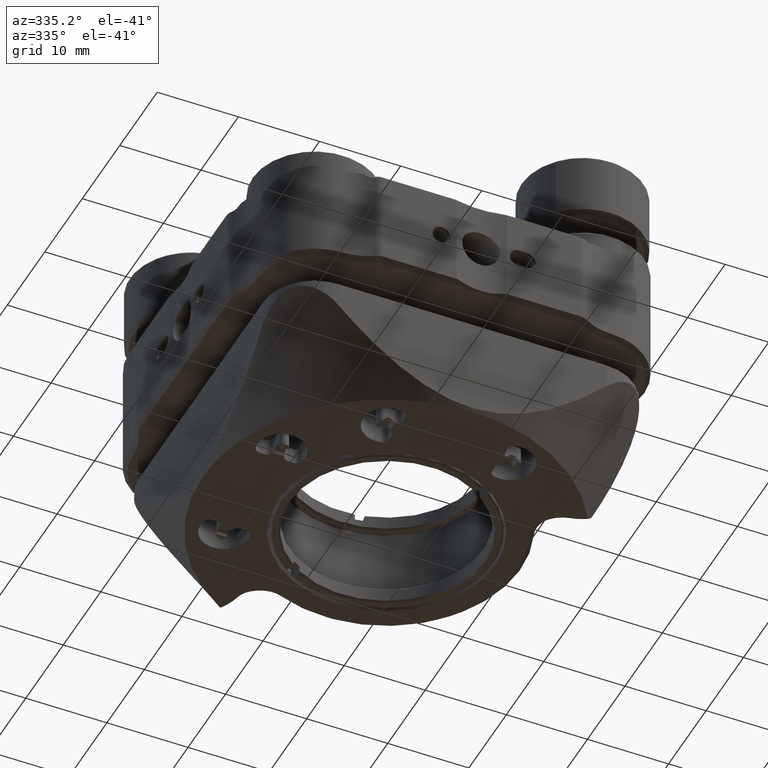
[diagram: clean part render]
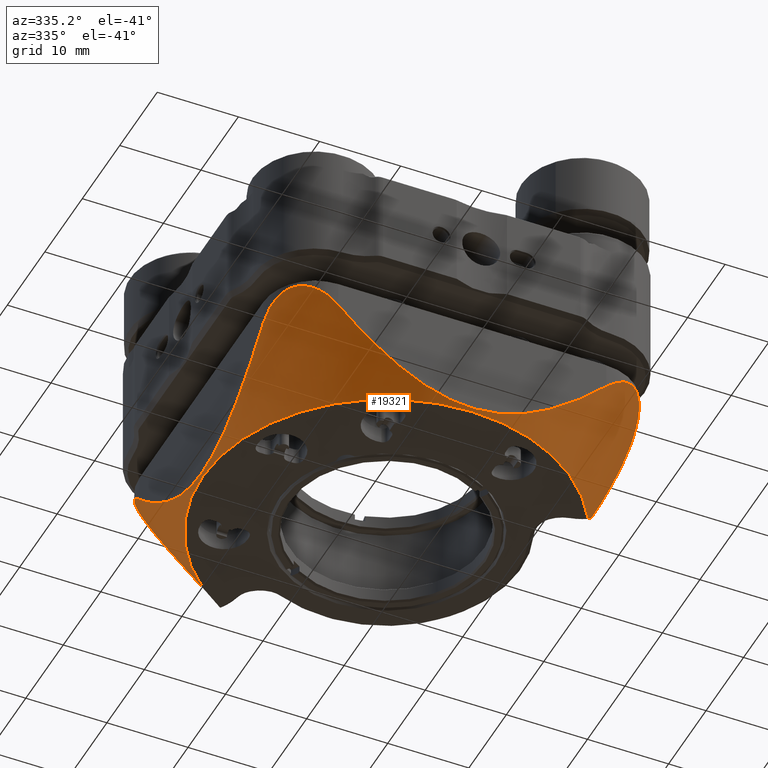
[diagram: same view with one face highlighted and labeled with its STEP entity id]
A machine part, auxiliary view. The second image highlights one B-rep face of the part: STEP entity #19321.
In plain terms, the highlighted conical surface has half-angle 30 deg.
Its self-contained STEP definition (entity closure, byte-faithful):
#87 = CARTESIAN_POINT ( 'NONE',  ( -22.85999999999995680, 16.84310386567812046, -15.60025666984973114 ) ) ;
#88 = CARTESIAN_POINT ( 'NONE',  ( 10.46453350911293612, -22.85999999999915744, -21.24502546422377591 ) ) ;
#252 = CARTESIAN_POINT ( 'NONE',  ( -22.86000000000013443, -0.4042374301810902626, -25.18486547961951771 ) ) ;
#270 = CARTESIAN_POINT ( 'NONE',  ( 22.67564328712232324, -18.07421779617813229, -14.55737153306060527 ) ) ;
#427 = CARTESIAN_POINT ( 'NONE',  ( -21.63071384112300422, -20.27261961741195506, -13.43322160502291496 ) ) ;
#573 = CARTESIAN_POINT ( 'NONE',  ( -22.86000000000002785, 9.796033959402018709, -21.71647102444041266 ) ) ;
#603 = VERTEX_POINT ( 'NONE', #5257 ) ;
#604 = ORIENTED_EDGE ( 'NONE', *, *, #14634, .F. ) ;
#685 = EDGE_CURVE ( 'NONE', #1149, #4710, #5581, .T. ) ;
#752 = CARTESIAN_POINT ( 'NONE',  ( -16.51000000000050960, -22.85999999999899757, -15.93805709571003959 ) ) ;
#785 = CARTESIAN_POINT ( 'NONE',  ( -22.86000000000025167, -11.73295521827860810, -20.28541116882302120 ) ) ;
#971 = CARTESIAN_POINT ( 'NONE',  ( -11.78697481907095757, 20.78177269148175554, -23.39841653795605581 ) ) ;
#1070 = CARTESIAN_POINT ( 'NONE',  ( 17.18774516505375161, -22.83418087851355338, -15.28045915768623253 ) ) ;
#1074 = CARTESIAN_POINT ( 'NONE',  ( -18.07782114073277668, 22.67471536333649240, -14.55473568109307436 ) ) ;
#1149 = VERTEX_POINT ( 'NONE', #10297 ) ;
#1183 = CARTESIAN_POINT ( 'NONE',  ( 22.26769329978891321, -13.78286640906990890, -19.42231144048091096 ) ) ;
#1184 = CARTESIAN_POINT ( 'NONE',  ( -22.33395331907298242, 19.04968600463999451, -13.93692290951005042 ) ) ;
#1340 = ORIENTED_EDGE ( 'NONE', *, *, #3432, .F. ) ;
#1396 = CARTESIAN_POINT ( 'NONE',  ( -16.01048892561568238, 22.84784313269421219, -16.45840940008130815 ) ) ;
#1582 = CARTESIAN_POINT ( 'NONE',  ( 22.05575202498567222, -19.61081306444384964, -13.66205647554039437 ) ) ;
#1617 = CARTESIAN_POINT ( 'NONE',  ( -6.288789413180198906, -22.85999999999907573, -23.71856693670702043 ) ) ;
#1687 = CARTESIAN_POINT ( 'NONE',  ( 20.01791883991606014, -21.80792715870244081, -13.50798504497202401 ) ) ;
#1717 = CARTESIAN_POINT ( 'NONE',  ( -3.224492084243656187, -22.85999999999909349, -24.81633385141254067 ) ) ;
#1741 = EDGE_CURVE ( 'NONE', #603, #4710, #3745, .T. ) ;
#1769 = CARTESIAN_POINT ( 'NONE',  ( -22.86000000000012378, 0.8204785123675015779, -25.18449419076939222 ) ) ;
#1870 = CARTESIAN_POINT ( 'NONE',  ( -22.86000000000018417, -5.542540322132188280, -24.04238157606024018 ) ) ;
#1930 = CARTESIAN_POINT ( 'NONE',  ( 1.626240023152004888, -22.85999999999911836, -25.10836332070731203 ) ) ;
#2013 = VERTEX_POINT ( 'NONE', #13946 ) ;
#2198 = CARTESIAN_POINT ( 'NONE',  ( 20.02571034833670538, -11.22206271343871720, -25.01899999999994506 ) ) ;
#2261 = CARTESIAN_POINT ( 'NONE',  ( -19.50311162692192468, -22.12923961509883242, -13.69511006662501629 ) ) ;
#2288 = CARTESIAN_POINT ( 'NONE',  ( 22.84752947202348849, -16.00629757697134181, -16.46302242322063591 ) ) ;
#2336 = CARTESIAN_POINT ( 'NONE',  ( 19.04928383217588461, -22.33413116998508130, -13.93714134838603513 ) ) ;
#2367 = CARTESIAN_POINT ( 'NONE',  ( -22.01041527668733266, -19.69135885523699869, -13.62798608632962072 ) ) ;
#2473 = B_SPLINE_CURVE_WITH_KNOTS ( 'NONE', 3,
 ( #18882, #18561, #7417, #4208, #7106, #12135, #10750, #10535, #10428, #10639, #2367, #16946, #427, #17057, #3874, #8914, #13744, #12247, #16840, #2261, #8808, #15449, #18772, #17160, #15137, #752 ),
 .UNSPECIFIED., .F., .F.,
 ( 4, 2, 2, 2, 2, 2, 2, 2, 2, 2, 2, 2, 4 ),
 ( 2.820198112598583091E-07, 0.001434344563425821780, 0.002151375835233108446, 0.002868407107040395979, 0.003585438378847683079, 0.004302469650654970612, 0.005019500922462258145, 0.005736532194269545679, 0.006453563466076833212, 0.007170594737884119878, 0.008604657281498692342, 0.01003871982511326914, 0.01147278236872784248 ),
 .UNSPECIFIED. ) ;
#2523 = CARTESIAN_POINT ( 'NONE',  ( -11.50575938971333123, 19.52438881273877058, -25.52699999999992997 ) ) ;
#2613 = CARTESIAN_POINT ( 'NONE',  ( -22.86000000000025878, -14.21375730173113361, -18.19206286644684312 ) ) ;
#2899 = CARTESIAN_POINT ( 'NONE',  ( -19.80676934673885015, 21.94191006720809156, -13.58259714776025895 ) ) ;
#2966 = ORIENTED_EDGE ( 'NONE', *, *, #7143, .F. ) ;
#3030 = AXIS2_PLACEMENT_3D ( 'NONE', #16651, #16955, #18568 ) ;
#3050 = B_SPLINE_CURVE_WITH_KNOTS ( 'NONE', 3,
 ( #16085, #10970, #971, #9341, #15877, #9244, #11072, #9567, #15769, #1396, #7736, #6040, #15670, #1074, #17603, #12571, #14485, #21017, #2899, #20911, #4640, #7627, #20703, #9458, #6244, #20597, #5934, #14277, #19105, #1184, #20809, #6138, #17810, #19423, #87, #11589 ),
 .UNSPECIFIED., .F., .F.,
 ( 4, 2, 2, 2, 2, 2, 2, 2, 2, 2, 2, 2, 2, 2, 2, 2, 2, 4 ),
 ( 0.0005826440569366842090, 0.003386035158615344296, 0.006189426260294003841, 0.008992817361972665555, 0.01039451291281200118, 0.01179620846365132987, 0.01319790401449066029, 0.01459959956532999072, 0.01530044734074965419, 0.01600129511616931594, 0.01670214289158897594, 0.01740299066700863942, 0.01810383844242830290, 0.01880468621784796637, 0.01950553399326762638, 0.02020638176868728986, 0.02160807731952660987, 0.02300977287036592642 ),
 .UNSPECIFIED. ) ;
#3107 = CARTESIAN_POINT ( 'NONE',  ( -6.654880030657831291, -22.85999999999907573, -23.54538773384555128 ) ) ;
#3215 = CARTESIAN_POINT ( 'NONE',  ( 12.38437846541532039, -22.85999999999916810, -19.75710857052904501 ) ) ;
#3270 = CARTESIAN_POINT ( 'NONE',  ( 20.02571034833670538, -11.22206271343871720, -25.01899999999994506 ) ) ;
#3324 = CARTESIAN_POINT ( 'NONE',  ( -11.73295521827985333, -22.85999999999905086, -20.28541116882312423 ) ) ;
#3380 = CARTESIAN_POINT ( 'NONE',  ( -22.86000000000017351, -4.006499317435401331, -24.60240511672172659 ) ) ;
#3428 = CARTESIAN_POINT ( 'NONE',  ( -15.38186753343757474, -22.85999999999904020, -17.08209553806639036 ) ) ;
#3432 = EDGE_CURVE ( 'NONE', #3741, #603, #8580, .T. ) ;
#3500 = CARTESIAN_POINT ( 'NONE',  ( 20.57460845539139171, -21.39421244664340449, -13.37008674074561476 ) ) ;
#3539 = CARTESIAN_POINT ( 'NONE',  ( -0.8160934678895819250, -22.85999999999909704, -25.16573719421119293 ) ) ;
#3741 = VERTEX_POINT ( 'NONE', #8649 ) ;
#3745 = B_SPLINE_CURVE_WITH_KNOTS ( 'NONE', 3,
 ( #4322, #17387, #1070, #17159, #8913, #5720, #18771, #4089, #2336, #5031, #6742, #1687, #9953, #3500, #10558, #16475, #8334, #19593, #9851, #13377, #1582, #14663, #13280, #14877, #270, #5237, #3902, #16975, #2288, #8835, #20596, #15451, #1183, #5827, #7735, #9143, #10537, #5933 ),
 .UNSPECIFIED., .F., .F.,
 ( 4, 2, 2, 2, 2, 2, 2, 2, 2, 2, 2, 2, 2, 2, 2, 2, 2, 2, 4 ),
 ( 2.820198113268311396E-07, 0.001409387839268682555, 0.002113940748997362746, 0.002818493658726042503, 0.003523046568454722693, 0.004227599478183402017, 0.004932152387912082207, 0.005636705297640761531, 0.006341258207369440854, 0.007045811117098120177, 0.007750364026826800368, 0.008454916936555478824, 0.009864022756012846144, 0.01127312857547021346, 0.01268223439492758252, 0.01409134021438495504, 0.01690955185329969662, 0.01972776349221444167, 0.02254597513112918672 ),
 .UNSPECIFIED. ) ;
#3812 = ORIENTED_EDGE ( 'NONE', *, *, #3916, .T. ) ;
#3874 = CARTESIAN_POINT ( 'NONE',  ( -21.17243315347706556, -20.82762809534849424, -13.34001314077490541 ) ) ;
#3902 = CARTESIAN_POINT ( 'NONE',  ( 22.85044573300819337, -16.99223540950101707, -15.45994146354761511 ) ) ;
#3916 = EDGE_CURVE ( 'NONE', #15834, #14369, #15071, .T. ) ;
#3999 = CARTESIAN_POINT ( 'NONE',  ( -22.85999999999996390, 16.51000000000114909, -15.93805709571020834 ) ) ;
#4089 = CARTESIAN_POINT ( 'NONE',  ( 18.85677897725415164, -22.41394716172152002, -14.04699445910233102 ) ) ;
#4208 = CARTESIAN_POINT ( 'NONE',  ( -22.74088230903892693, -17.74812033044664972, -14.81593389560505436 ) ) ;
#4322 = CARTESIAN_POINT ( 'NONE',  ( 16.50999999999971735, -22.85999999999918231, -15.93805709571045170 ) ) ;
#4640 = CARTESIAN_POINT ( 'NONE',  ( -20.37722487258578141, 21.55199210133853782, -13.40826423954356095 ) ) ;
#4710 = VERTEX_POINT ( 'NONE', #3270 ) ;
#4747 = CARTESIAN_POINT ( 'NONE',  ( 9.796033959400970659, -22.85999999999915744, -21.71647102444021371 ) ) ;
#5010 = CARTESIAN_POINT ( 'NONE',  ( -22.86000000000010601, 3.215797281964433818, -24.80055201960490052 ) ) ;
#5031 = CARTESIAN_POINT ( 'NONE',  ( 19.43633789061033212, -22.14959332004711001, -13.74023355848486183 ) ) ;
#5237 = CARTESIAN_POINT ( 'NONE',  ( 22.81648132798400752, -17.34079944493666048, -15.14522663374775746 ) ) ;
#5257 = CARTESIAN_POINT ( 'NONE',  ( 16.50999999999971735, -22.85999999999918231, -15.93805709571045170 ) ) ;
#5581 = B_SPLINE_CURVE_WITH_KNOTS ( 'NONE', 3,
 ( #5870, #13783, #15709, #2198 ),
 .UNSPECIFIED., .F., .F.,
 ( 4, 4 ),
 ( 0.000000000000000000, 0.0007680306544560853033 ),
 .UNSPECIFIED. ) ;
#5720 = CARTESIAN_POINT ( 'NONE',  ( 18.28214299360741180, -22.61075783458183608, -14.41717244209464610 ) ) ;
#5827 = CARTESIAN_POINT ( 'NONE',  ( 21.75236068755080154, -12.88978672191305463, -20.98729757659610584 ) ) ;
#5870 = CARTESIAN_POINT ( 'NONE',  ( 19.52438881273768345, -11.50575938971267753, -25.52699999999992997 ) ) ;
#5933 = CARTESIAN_POINT ( 'NONE',  ( 20.02571034833670538, -11.22206271343871720, -25.01899999999994506 ) ) ;
#5934 = CARTESIAN_POINT ( 'NONE',  ( -21.80791223942663848, 20.01792304057036631, -13.50799554788431678 ) ) ;
#6040 = CARTESIAN_POINT ( 'NONE',  ( -16.99590099060233683, 22.85015922540195987, -15.45655046080954342 ) ) ;
#6085 = CIRCLE ( 'NONE', #16000, 22.66239743815603092 ) ;
#6138 = CARTESIAN_POINT ( 'NONE',  ( -22.62042892216360457, 18.28481253692648778, -14.40465717461242257 ) ) ;
#6244 = CARTESIAN_POINT ( 'NONE',  ( -21.39330475765609663, 20.57573607745831623, -13.36987479049342831 ) ) ;
#6351 = CARTESIAN_POINT ( 'NONE',  ( 4.394689733766728779, -22.85999999999912546, -24.46498613993660243 ) ) ;
#6672 = CARTESIAN_POINT ( 'NONE',  ( 15.38348784751299192, -22.85999999999917520, -17.08045237855597165 ) ) ;
#6725 = CARTESIAN_POINT ( 'NONE',  ( -22.86000000000006693, 6.316880206378543861, -23.78368314311851606 ) ) ;
#6742 = CARTESIAN_POINT ( 'NONE',  ( 19.63259764766172566, -22.04379713191334389, -13.65256398788583070 ) ) ;
#6830 = CARTESIAN_POINT ( 'NONE',  ( -22.86000000000019128, -6.654880030657396972, -23.54538773384513206 ) ) ;
#6837 = DIRECTION ( 'NONE',  ( -2.298628254063814951E-18, 1.387778780781445367E-17, 1.000000000000000000 ) ) ;
#6910 = FACE_OUTER_BOUND ( 'NONE', #13874, .T. ) ;
#6928 = CARTESIAN_POINT ( 'NONE',  ( -22.86000000000004917, 7.746882518165121745, -23.03076641891081877 ) ) ;
#7031 = CARTESIAN_POINT ( 'NONE',  ( -22.86000000000010246, 2.820236293934226257, -24.89045205797724236 ) ) ;
#7106 = CARTESIAN_POINT ( 'NONE',  ( -22.70129750301263982, -17.93449317378822983, -14.67066706456445679 ) ) ;
#7134 = CARTESIAN_POINT ( 'NONE',  ( -22.86000000000011312, 1.626240023152696557, -25.10836332070743993 ) ) ;
#7143 = EDGE_CURVE ( 'NONE', #2013, #3741, #2473, .T. ) ;
#7224 = ORIENTED_EDGE ( 'NONE', *, *, #20668, .F. ) ;
#7417 = CARTESIAN_POINT ( 'NONE',  ( -22.83327554114946167, -17.19995046034914665, -15.26912637819732055 ) ) ;
#7469 = CARTESIAN_POINT ( 'NONE',  ( -11.22206271343943129, 20.02571034833801278, -25.01899999999984558 ) ) ;
#7627 = CARTESIAN_POINT ( 'NONE',  ( -20.73737335667004444, 21.25409391437625928, -13.34828003456664547 ) ) ;
#7735 = CARTESIAN_POINT ( 'NONE',  ( 21.44895657508721243, -12.48961860625740528, -21.79003488487868978 ) ) ;
#7736 = CARTESIAN_POINT ( 'NONE',  ( -16.32910378610345248, 22.86617773004467935, -16.11444977960944414 ) ) ;
#8167 = CARTESIAN_POINT ( 'NONE',  ( 11.75758148023693117, -22.85999999999917165, -20.26598065534815518 ) ) ;
#8266 = CARTESIAN_POINT ( 'NONE',  ( 2.820236293933466420, -22.85999999999912191, -24.89045205797707183 ) ) ;
#8317 = CARTESIAN_POINT ( 'NONE',  ( -22.86000000000014509, -0.8160934678892040051, -25.16573719421120003 ) ) ;
#8334 = CARTESIAN_POINT ( 'NONE',  ( 21.25535110582784171, -20.73598741429859516, -13.34840392382907126 ) ) ;
#8424 = CARTESIAN_POINT ( 'NONE',  ( -22.86000000000018062, -6.288789413179824095, -23.71856693670658345 ) ) ;
#8580 = B_SPLINE_CURVE_WITH_KNOTS ( 'NONE', 3,
 ( #18124, #3428, #19520, #17811, #3324, #9989, #21125, #9883, #14592, #3107, #1617, #13313, #12996, #16512, #1717, #11692, #16192, #3539, #10095, #11385, #1930, #8266, #14803, #14486, #6351, #19731, #12887, #4747, #88, #8167, #3215, #11290, #6672, #17915 ),
 .UNSPECIFIED., .F., .F.,
 ( 4, 2, 2, 2, 2, 2, 2, 2, 2, 2, 2, 2, 2, 2, 2, 2, 4 ),
 ( 0.02350713015217543653, 0.02831455399927142874, 0.03071826592281942658, 0.03312197784636743136, 0.03552568976991543614, 0.03672754573168943160, 0.03792940169346342705, 0.04033311361701141795, 0.04153496957878542034, 0.04273682554055941579, 0.04514053746410741363, 0.04634239342588140909, 0.04754424938765541148, 0.05235167323475139328, 0.05475538515829937725, 0.05715909708184736815, 0.06196652092894334996 ),
 .UNSPECIFIED. ) ;
#8649 = CARTESIAN_POINT ( 'NONE',  ( -16.51000000000050960, -22.85999999999899757, -15.93805709571003959 ) ) ;
#8808 = CARTESIAN_POINT ( 'NONE',  ( -19.10010754633625751, -22.32256281356248451, -13.89844320792302845 ) ) ;
#8835 = CARTESIAN_POINT ( 'NONE',  ( 22.76867225391437444, -15.39330059648328941, -17.17753764969662811 ) ) ;
#8843 = CARTESIAN_POINT ( 'NONE',  ( -22.86000000000024812, -12.36413599015600795, -19.77395685856082963 ) ) ;
#8913 = CARTESIAN_POINT ( 'NONE',  ( 17.90842583560088030, -22.70710756146185005, -14.69069907975177358 ) ) ;
#8914 = CARTESIAN_POINT ( 'NONE',  ( -20.83293476355631313, -21.16751331832987049, -13.33964066815352467 ) ) ;
#8965 = CARTESIAN_POINT ( 'NONE',  ( -11.31660740558378642, 19.85984660074479180, -25.18956303884460723 ) ) ;
#9061 = CARTESIAN_POINT ( 'NONE',  ( -22.86000000000032273, -16.50999999999893575, -15.93805709571014972 ) ) ;
#9143 = CARTESIAN_POINT ( 'NONE',  ( 20.78256693649844422, -11.78750803336938624, -23.39677129564847036 ) ) ;
#9221 = CARTESIAN_POINT ( 'NONE',  ( -11.50575938971333123, 19.52438881273877058, -25.52699999999992997 ) ) ;
#9244 = CARTESIAN_POINT ( 'NONE',  ( -13.77903923625545346, 22.26616252259498197, -19.42807226563650502 ) ) ;
#9341 = CARTESIAN_POINT ( 'NONE',  ( -12.48617122467710772, 21.44597110751915636, -21.79750140111331547 ) ) ;
#9458 = CARTESIAN_POINT ( 'NONE',  ( -21.23661384161345822, 20.75699815855802299, -13.34622310405659462 ) ) ;
#9567 = CARTESIAN_POINT ( 'NONE',  ( -15.10584106898825141, 22.70944013222866076, -17.53953218505551703 ) ) ;
#9851 = CARTESIAN_POINT ( 'NONE',  ( 21.69344086240323932, -20.18511860739637598, -13.45709908584832704 ) ) ;
#9883 = CARTESIAN_POINT ( 'NONE',  ( -8.430713624059530176, -22.85999999999906862, -22.59196387566906949 ) ) ;
#9953 = CARTESIAN_POINT ( 'NONE',  ( 20.20648210276326751, -21.67842269783889364, -13.45099884986586325 ) ) ;
#9989 = CARTESIAN_POINT ( 'NONE',  ( -10.44422964169597989, -22.85999999999906152, -21.25958643868261788 ) ) ;
#10039 = CARTESIAN_POINT ( 'NONE',  ( -22.85999999999998877, 14.21956347933904574, -18.18615103232183472 ) ) ;
#10095 = CARTESIAN_POINT ( 'NONE',  ( -0.4042374301814463111, -22.85999999999910060, -25.18486547961947863 ) ) ;
#10121 = VERTEX_POINT ( 'NONE', #3999 ) ;
#10297 = CARTESIAN_POINT ( 'NONE',  ( 19.52438881273768345, -11.50575938971267753, -25.52699999999992997 ) ) ;
#10428 = CARTESIAN_POINT ( 'NONE',  ( -22.31323066261869315, -19.09710809177240520, -13.91091993320471865 ) ) ;
#10535 = CARTESIAN_POINT ( 'NONE',  ( -22.39631267212258336, -18.90103428175283895, -14.02100965577828262 ) ) ;
#10537 = CARTESIAN_POINT ( 'NONE',  ( 20.41810655373661021, -11.48294920380592465, -24.20519851496149144 ) ) ;
#10558 = CARTESIAN_POINT ( 'NONE',  ( 20.75597929211468440, -21.23759038338726413, -13.34626385883745492 ) ) ;
#10639 = CARTESIAN_POINT ( 'NONE',  ( -22.12087639793575278, -19.49138901338935881, -13.71468508248332263 ) ) ;
#10750 = CARTESIAN_POINT ( 'NONE',  ( -22.54010402086174381, -18.51089162827380363, -14.26197091308990217 ) ) ;
#10853 = ORIENTED_EDGE ( 'NONE', *, *, #685, .T. ) ;
#10970 = CARTESIAN_POINT ( 'NONE',  ( -11.48290425596033515, 20.41803894822746912, -24.20533872392372743 ) ) ;
#11072 = CARTESIAN_POINT ( 'NONE',  ( -14.27629589721263592, 22.48176247080049350, -18.65681574906642837 ) ) ;
#11290 = CARTESIAN_POINT ( 'NONE',  ( 14.21956347933768505, -22.85999999999916810, -18.18615103232191998 ) ) ;
#11385 = CARTESIAN_POINT ( 'NONE',  ( 0.8204785123669080527, -22.85999999999911481, -25.18449419076927498 ) ) ;
#11539 = CARTESIAN_POINT ( 'NONE',  ( -22.86000000000015930, -3.224492084243208545, -24.81633385141236658 ) ) ;
#11589 = CARTESIAN_POINT ( 'NONE',  ( -22.85999999999996390, 16.51000000000114909, -15.93805709571020834 ) ) ;
#11649 = DIRECTION ( 'NONE',  ( 1.427297379544179740E-14, 1.000000000000000000, 0.000000000000000000 ) ) ;
#11692 = CARTESIAN_POINT ( 'NONE',  ( -2.029652106723021543, -22.85999999999910060, -25.03490604444524337 ) ) ;
#12135 = CARTESIAN_POINT ( 'NONE',  ( -22.60103753109527247, -18.31571519564073824, -14.39371548656671074 ) ) ;
#12247 = CARTESIAN_POINT ( 'NONE',  ( -20.28236067400715470, -21.62356306445564869, -13.43072341372833556 ) ) ;
#12493 = CARTESIAN_POINT ( 'NONE',  ( -22.86000000000023391, -10.44422964169492829, -21.25958643868239761 ) ) ;
#12571 = CARTESIAN_POINT ( 'NONE',  ( -19.03134217103720971, 22.34166312801072252, -13.94725068835173687 ) ) ;
#12622 = CONICAL_SURFACE ( 'NONE', #3030, 35.05199999999999250, 0.5235987755983027014 ) ;
#12887 = CARTESIAN_POINT ( 'NONE',  ( 7.746882518164066589, -22.85999999999914678, -23.03076641891063048 ) ) ;
#12996 = CARTESIAN_POINT ( 'NONE',  ( -5.160744422213531024, -22.85999999999908283, -24.19355027333206820 ) ) ;
#13280 = CARTESIAN_POINT ( 'NONE',  ( 22.34419069075357100, -19.02542448734552138, -13.95055448733282333 ) ) ;
#13313 = CARTESIAN_POINT ( 'NONE',  ( -5.542540322132425423, -22.85999999999908638, -24.04238157606067006 ) ) ;
#13377 = CARTESIAN_POINT ( 'NONE',  ( 21.94383068012987792, -19.80363630234765893, -13.58376976309274120 ) ) ;
#13675 = CARTESIAN_POINT ( 'NONE',  ( -22.85999999999999943, 12.38437846541655141, -19.75710857052908764 ) ) ;
#13744 = CARTESIAN_POINT ( 'NONE',  ( -20.65483592555010617, -21.32659292646065552, -13.35794416444832144 ) ) ;
#13783 = CARTESIAN_POINT ( 'NONE',  ( 19.69277104473039586, -11.41106840648785514, -25.35900513864007166 ) ) ;
#13874 = EDGE_LOOP ( 'NONE', ( #14329, #10853, #17072, #1340, #2966, #604, #7224, #3812 ) ) ;
#13946 = CARTESIAN_POINT ( 'NONE',  ( -22.86000000000032273, -16.50999999999893575, -15.93805709571014972 ) ) ;
#14097 = CARTESIAN_POINT ( 'NONE',  ( -22.86000000000028365, -15.38186753343615010, -17.08209553806642234 ) ) ;
#14277 = CARTESIAN_POINT ( 'NONE',  ( -22.04350272645084630, 19.63309873868746891, -13.65236390695135249 ) ) ;
#14329 = ORIENTED_EDGE ( 'NONE', *, *, #17709, .T. ) ;
#14369 = VERTEX_POINT ( 'NONE', #9221 ) ;
#14485 = CARTESIAN_POINT ( 'NONE',  ( -19.22764001631503206, 22.25320114180477660, -13.84233221876828068 ) ) ;
#14486 = CARTESIAN_POINT ( 'NONE',  ( 4.002309967623259190, -22.85999999999912546, -24.58811146020753213 ) ) ;
#14592 = CARTESIAN_POINT ( 'NONE',  ( -7.734904608617357624, -22.85999999999906507, -22.99660883292075653 ) ) ;
#14634 = EDGE_CURVE ( 'NONE', #10121, #2013, #18292, .T. ) ;
#14663 = CARTESIAN_POINT ( 'NONE',  ( 22.25609899282258297, -19.22159612552128394, -13.84539015998484501 ) ) ;
#14803 = CARTESIAN_POINT ( 'NONE',  ( 3.215797281963668208, -22.85999999999912546, -24.80055201960470512 ) ) ;
#14877 = CARTESIAN_POINT ( 'NONE',  ( 22.57084179203128116, -18.44888169892925234, -14.29227089519402405 ) ) ;
#14964 = CARTESIAN_POINT ( 'NONE',  ( -22.86000000000002785, 10.46453350911399482, -21.24502546422396065 ) ) ;
#15071 = B_SPLINE_CURVE_WITH_KNOTS ( 'NONE', 3,
 ( #7469, #8965, #18827, #2523 ),
 .UNSPECIFIED., .F., .F.,
 ( 4, 4 ),
 ( 4.810535519880076760E-17, 0.0007680306544562208286 ),
 .UNSPECIFIED. ) ;
#15137 = CARTESIAN_POINT ( 'NONE',  ( -16.84951781116543046, -22.85999999999899046, -15.59375229166447774 ) ) ;
#15380 = CARTESIAN_POINT ( 'NONE',  ( -22.86000000000020904, -8.430713624058798317, -22.59196387566870712 ) ) ;
#15449 = CARTESIAN_POINT ( 'NONE',  ( -18.32197323240295717, -22.61010627516041183, -14.37827047823748750 ) ) ;
#15451 = CARTESIAN_POINT ( 'NONE',  ( 22.48125028565803518, -14.27547655285183836, -18.65828628307385983 ) ) ;
#15480 = CARTESIAN_POINT ( 'NONE',  ( -22.86000000000021970, -9.785401113348587643, -21.72349269743060063 ) ) ;
#15670 = CARTESIAN_POINT ( 'NONE',  ( -17.34489978877434169, 22.81592744828153840, -15.14169040460227222 ) ) ;
#15709 = CARTESIAN_POINT ( 'NONE',  ( 19.85984660074340624, -11.31660740558291067, -25.18956303884457171 ) ) ;
#15769 = CARTESIAN_POINT ( 'NONE',  ( -15.39817103680662846, 22.76952100760721365, -17.17159216655887377 ) ) ;
#15834 = VERTEX_POINT ( 'NONE', #19499 ) ;
#15877 = CARTESIAN_POINT ( 'NONE',  ( -12.88108410012270078, 21.74665189517653374, -21.00350659194752012 ) ) ;
#16000 = AXIS2_PLACEMENT_3D ( 'NONE', #19688, #6837, #11649 ) ;
#16085 = CARTESIAN_POINT ( 'NONE',  ( -11.22206271343943129, 20.02571034833801278, -25.01899999999984558 ) ) ;
#16192 = CARTESIAN_POINT ( 'NONE',  ( -1.627732125557938447, -22.85999999999909349, -25.09070151675252447 ) ) ;
#16453 = CARTESIAN_POINT ( 'NONE',  ( -22.86000000000018062, -5.160744422213353388, -24.19355027333164543 ) ) ;
#16475 = CARTESIAN_POINT ( 'NONE',  ( 21.09593285431673593, -20.90859873571811889, -13.33570864657069777 ) ) ;
#16512 = CARTESIAN_POINT ( 'NONE',  ( -4.006499317435772589, -22.85999999999907573, -24.60240511672196462 ) ) ;
#16569 = CARTESIAN_POINT ( 'NONE',  ( -22.86000000000008470, 4.394689733767513040, -24.46498613993683691 ) ) ;
#16651 = CARTESIAN_POINT ( 'NONE',  ( -1.128325251728210757E-13, 8.807722973628911640E-13, -4.067578877300841889 ) ) ;
#16840 = CARTESIAN_POINT ( 'NONE',  ( -20.08769804839772277, -21.76124694146670890, -13.48567890057985785 ) ) ;
#16871 = CARTESIAN_POINT ( 'NONE',  ( -22.85999999999997456, 15.38348784751440057, -17.08045237855579757 ) ) ;
#16946 = CARTESIAN_POINT ( 'NONE',  ( -21.76532512382231133, -20.08171810544048341, -13.48751472105963778 ) ) ;
#16955 = DIRECTION ( 'NONE',  ( 8.194806288214342553E-15, 6.128938794976925990E-16, 1.000000000000000000 ) ) ;
#16975 = CARTESIAN_POINT ( 'NONE',  ( 22.86607136486837533, -16.32517606188672588, -16.11855333889715070 ) ) ;
#17057 = CARTESIAN_POINT ( 'NONE',  ( -21.33504267229354667, -20.64497035521988977, -13.35930752287734968 ) ) ;
#17072 = ORIENTED_EDGE ( 'NONE', *, *, #1741, .F. ) ;
#17159 = CARTESIAN_POINT ( 'NONE',  ( 17.72562386159173187, -22.74520522519894072, -14.83395971945786229 ) ) ;
#17160 = CARTESIAN_POINT ( 'NONE',  ( -17.20230692050978050, -22.83326044624508810, -15.26676644017609163 ) ) ;
#17387 = CARTESIAN_POINT ( 'NONE',  ( 16.84310088064813371, -22.85999999999917520, -15.60025969696559400 ) ) ;
#17603 = CARTESIAN_POINT ( 'NONE',  ( -18.45284434152102548, 22.56967825819045004, -14.28952325330583761 ) ) ;
#17709 = EDGE_CURVE ( 'NONE', #14369, #1149, #6085, .T. ) ;
#17810 = CARTESIAN_POINT ( 'NONE',  ( -22.71519725905231724, 17.90666580613658354, -14.68373950557972307 ) ) ;
#17811 = CARTESIAN_POINT ( 'NONE',  ( -12.36413599015739884, -22.85999999999905086, -19.77395685856081187 ) ) ;
#17915 = CARTESIAN_POINT ( 'NONE',  ( 16.50999999999971735, -22.85999999999918231, -15.93805709571045170 ) ) ;
#18124 = CARTESIAN_POINT ( 'NONE',  ( -16.51000000000050960, -22.85999999999899757, -15.93805709571003959 ) ) ;
#18283 = CARTESIAN_POINT ( 'NONE',  ( -22.86000000000002075, 11.75758148023811778, -20.26598065534824045 ) ) ;
#18292 = B_SPLINE_CURVE_WITH_KNOTS ( 'NONE', 3,
 ( #19885, #16871, #10039, #13675, #18283, #14964, #573, #6928, #6725, #16569, #18488, #5010, #7031, #7134, #1769, #252, #8317, #19782, #19988, #11539, #3380, #16453, #1870, #8424, #6830, #20411, #15380, #15480, #12493, #785, #8843, #2613, #14097, #9061 ),
 .UNSPECIFIED., .F., .F.,
 ( 4, 2, 2, 2, 2, 2, 2, 2, 2, 2, 2, 2, 2, 2, 2, 2, 4 ),
 ( 0.08239793152777001584, 0.08721915576954328286, 0.08962976789042992332, 0.09204038001131656377, 0.09686160425308984467, 0.09806691031353316490, 0.09927221637397648513, 0.1016828284948631256, 0.1028881345553064458, 0.1040934406157497660, 0.1065040527366364065, 0.1077093587970797406, 0.1089146648575230608, 0.1113252769784097013, 0.1137358890992963417, 0.1161465012201829961, 0.1209677254619562770 ),
 .UNSPECIFIED. ) ;
#18488 = CARTESIAN_POINT ( 'NONE',  ( -22.86000000000008825, 4.002309967624018583, -24.58811146020775951 ) ) ;
#18561 = CARTESIAN_POINT ( 'NONE',  ( -22.86000000000033339, -16.84900044239785188, -15.59427695501286060 ) ) ;
#18568 = DIRECTION ( 'NONE',  ( 1.000000000000000000, -1.335137372922576770E-14, -8.190594981004268376E-15 ) ) ;
#18771 = CARTESIAN_POINT ( 'NONE',  ( 18.47370124132230274, -22.55217188528354555, -14.28660998044493624 ) ) ;
#18772 = CARTESIAN_POINT ( 'NONE',  ( -17.94118720980579695, -22.70795246139581991, -14.65673720671081703 ) ) ;
#18827 = CARTESIAN_POINT ( 'NONE',  ( -11.41106840648854615, 19.69277104473156470, -25.35900513864006101 ) ) ;
#18882 = CARTESIAN_POINT ( 'NONE',  ( -22.86000000000032273, -16.50999999999893575, -15.93805709571014972 ) ) ;
#19105 = CARTESIAN_POINT ( 'NONE',  ( -22.14945102955126544, 19.43660713970966469, -13.74011044602090870 ) ) ;
#19321 = ADVANCED_FACE ( 'NONE', ( #6910 ), #12622, .T. ) ;
#19423 = CARTESIAN_POINT ( 'NONE',  ( -22.83419323414945623, 17.18803269457909977, -15.28015582390136373 ) ) ;
#19499 = CARTESIAN_POINT ( 'NONE',  ( -11.22206271343943129, 20.02571034833801278, -25.01899999999984558 ) ) ;
#19520 = CARTESIAN_POINT ( 'NONE',  ( -14.21375730173250140, -22.85999999999904020, -18.19206286644685733 ) ) ;
#19593 = CARTESIAN_POINT ( 'NONE',  ( 21.55370060736506943, -20.37502405253281879, -13.40873880839273546 ) ) ;
#19688 = CARTESIAN_POINT ( 'NONE',  ( -1.127831979411135073E-13, 8.116383745615989544E-13, -25.52699999999992997 ) ) ;
#19731 = CARTESIAN_POINT ( 'NONE',  ( 6.316880206377532225, -22.85999999999914323, -23.78368314311830645 ) ) ;
#19782 = CARTESIAN_POINT ( 'NONE',  ( -22.86000000000014865, -1.627732125557490139, -25.09070151675246763 ) ) ;
#19885 = CARTESIAN_POINT ( 'NONE',  ( -22.85999999999996390, 16.51000000000114909, -15.93805709571020834 ) ) ;
#19988 = CARTESIAN_POINT ( 'NONE',  ( -22.86000000000014865, -2.029652106722565907, -25.03490604444515100 ) ) ;
#20411 = CARTESIAN_POINT ( 'NONE',  ( -22.86000000000020194, -7.734904608616736787, -22.99660883292036218 ) ) ;
#20596 = CARTESIAN_POINT ( 'NONE',  ( 22.70847589919352671, -15.10180868502455986, -17.54478123388419775 ) ) ;
#20597 = CARTESIAN_POINT ( 'NONE',  ( -21.67835422094707809, 20.20661870558899409, -13.45093305329551647 ) ) ;
#20668 = EDGE_CURVE ( 'NONE', #15834, #10121, #3050, .T. ) ;
#20703 = CARTESIAN_POINT ( 'NONE',  ( -20.90931973245724151, 21.09517803996094898, -13.33574120992597933 ) ) ;
#20809 = CARTESIAN_POINT ( 'NONE',  ( -22.41361717695932043, 18.85755287830237492, -14.04656210971914376 ) ) ;
#20911 = CARTESIAN_POINT ( 'NONE',  ( -20.18731605559325715, 21.69186083671772991, -13.45650358426976467 ) ) ;
#21017 = CARTESIAN_POINT ( 'NONE',  ( -19.61472393930120006, 22.05352016991315978, -13.66043090013978123 ) ) ;
#21125 = CARTESIAN_POINT ( 'NONE',  ( -9.785401113349534441, -22.85999999999906507, -21.72349269743087063 ) ) ;